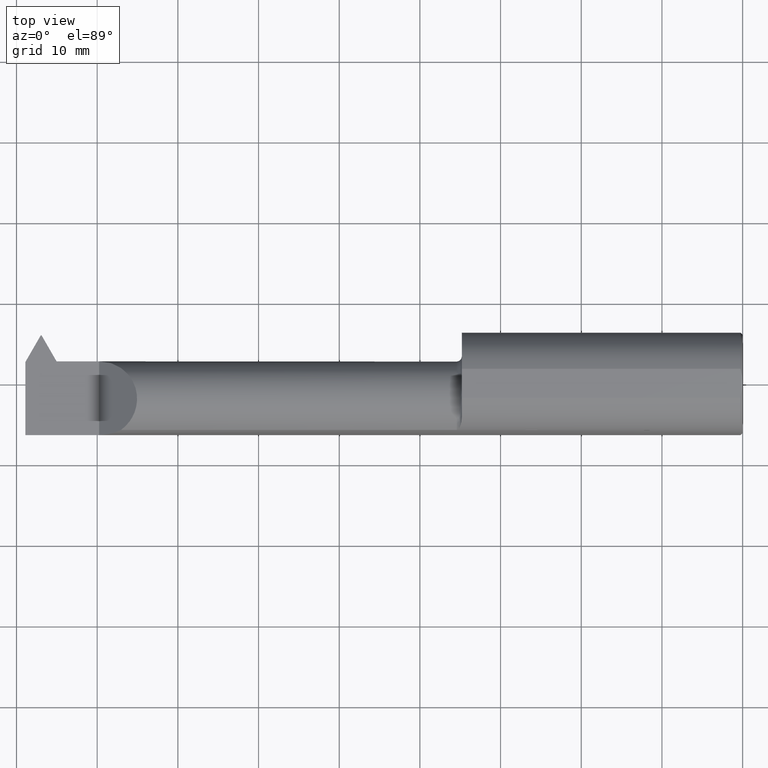
[diagram: clean part render]
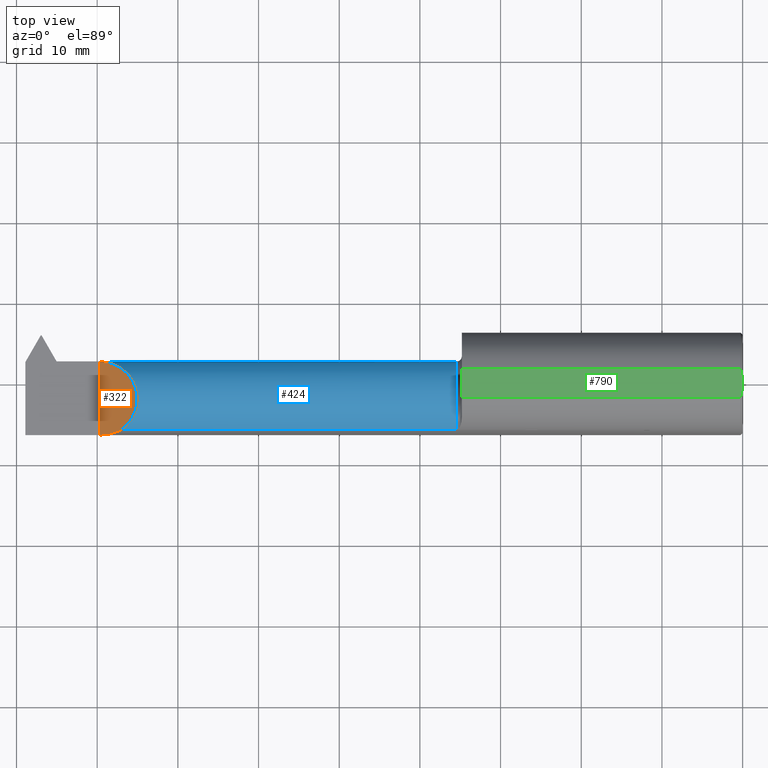
[diagram: same view with three faces highlighted in distinct colors, each labeled with its STEP entity id]
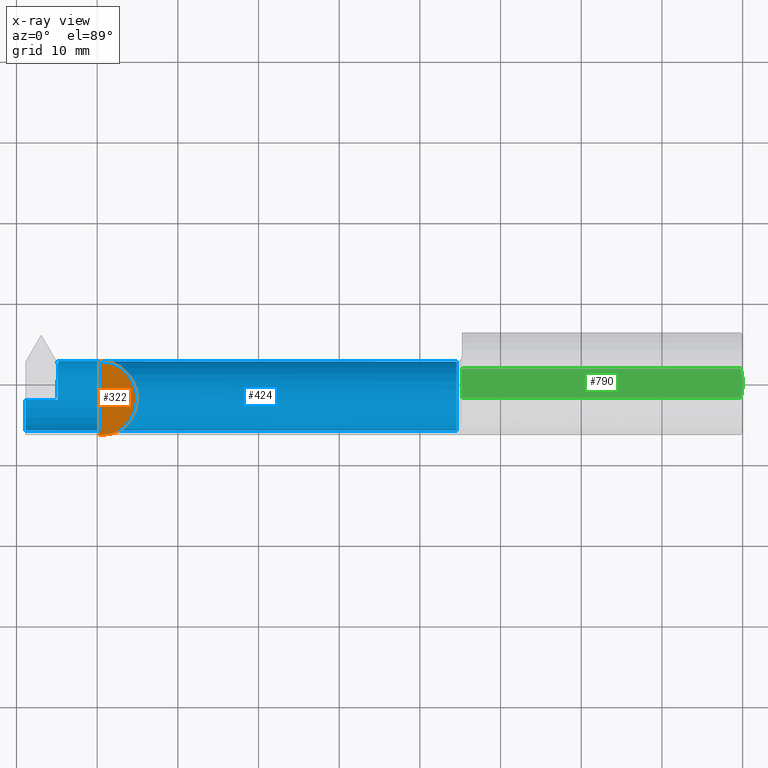
[diagram: x-ray of the same camera — body ghosted, the three highlighted faces saturated]
A machine part, top view with three faces highlighted in distinct colors.
The next image is the same camera in x-ray (body ghosted, the three faces saturated) — at least one of them is partly hidden behind the body in this view.
Their STEP definitions:

[orange] entity #322 — the highlighted planar face has unit normal (0.7071, 0, -0.7071).
#10 = PLANE ( 'NONE',  #853 ) ;
#84 = CARTESIAN_POINT ( 'NONE',  ( -3.033048970379629949, -0.2258019038076140572, 0.1069510296203688288 ) ) ;
#111 = CARTESIAN_POINT ( 'NONE',  ( -3.033048970379629949, -0.2258019038076140572, 0.1069510296203688288 ) ) ;
#143 = DIRECTION ( 'NONE',  ( -0.7071067811865522357, 0.000000000000000000, -0.7071067811865427988 ) ) ;
#163 = CARTESIAN_POINT ( 'NONE',  ( -3.139999999999999680, 0.1101499999999999840, 0.000000000000000000 ) ) ;
#186 = VERTEX_POINT ( 'NONE', #342 ) ;
#252 = CARTESIAN_POINT ( 'NONE',  ( -3.139999999999999680, -0.2500000000000000000, 0.000000000000000000 ) ) ;
#322 = ADVANCED_FACE ( 'NONE', ( #642 ), #10, .F. ) ;
#342 = CARTESIAN_POINT ( 'NONE',  ( -3.139999999999999680, -0.2498500000000000443, 0.000000000000000000 ) ) ;
#366 = CARTESIAN_POINT ( 'NONE',  ( -3.139999999999999680, 0.1101499999999999840, 0.000000000000000000 ) ) ;
#386 = ORIENTED_EDGE ( 'NONE', *, *, #509, .F. ) ;
#396 = EDGE_LOOP ( 'NONE', ( #435, #386, #616 ) ) ;
#399 = DIRECTION ( 'NONE',  ( -0.000000000000000000, 1.000000000000000000, -0.000000000000000000 ) ) ;
#405 = CARTESIAN_POINT ( 'NONE',  ( -3.139999999999999680, -0.2498500000000000443, 0.000000000000000000 ) ) ;
#435 = ORIENTED_EDGE ( 'NONE', *, *, #848, .F. ) ;
#448 = VERTEX_POINT ( 'NONE', #505 ) ;
#449 =( BOUNDED_CURVE ( )  B_SPLINE_CURVE ( 3, ( #366, #854, #508, #84 ),
 .UNSPECIFIED., .F., .T. ) 
 B_SPLINE_CURVE_WITH_KNOTS ( ( 4, 4 ),
 ( 1.570796326794896558, 4.095973986638924202 ),
 .UNSPECIFIED. ) 
 CURVE ( )  GEOMETRIC_REPRESENTATION_ITEM ( )  RATIONAL_B_SPLINE_CURVE ( ( 1.000000000000000000, 0.5355673909124378795, 0.5355673909124378795, 1.000000000000000000 ) ) 
 REPRESENTATION_ITEM ( '' )  );
#481 = VERTEX_POINT ( 'NONE', #163 ) ;
#487 = DIRECTION ( 'NONE',  ( 0.7071067811865427988, 0.000000000000000000, -0.7071067811865522357 ) ) ;
#505 = CARTESIAN_POINT ( 'NONE',  ( -3.033048970379629949, -0.2258019038076140572, 0.1069510296203688288 ) ) ;
#508 = CARTESIAN_POINT ( 'NONE',  ( -2.854000382304567651, -0.09894407450122377767, 0.2859996176954283653 ) ) ;
#509 = EDGE_CURVE ( 'NONE', #186, #481, #682, .T. ) ;
#615 = EDGE_CURVE ( 'NONE', #186, #448, #648, .T. ) ;
#616 = ORIENTED_EDGE ( 'NONE', *, *, #615, .T. ) ;
#626 = CARTESIAN_POINT ( 'NONE',  ( -3.066617523761939967, -0.2417016428557103302, 0.07338247623805854714 ) ) ;
#642 = FACE_OUTER_BOUND ( 'NONE', #396, .T. ) ;
#648 =( BOUNDED_CURVE ( )  B_SPLINE_CURVE ( 3, ( #405, #762, #626, #111 ),
 .UNSPECIFIED., .F., .T. ) 
 B_SPLINE_CURVE_WITH_KNOTS ( ( 4, 4 ),
 ( 4.712388980384689674, 5.154735109466821896 ),
 .UNSPECIFIED. ) 
 CURVE ( )  GEOMETRIC_REPRESENTATION_ITEM ( )  RATIONAL_B_SPLINE_CURVE ( ( 1.000000000000000000, 0.9837605203333756876, 0.9837605203333756876, 1.000000000000000000 ) ) 
 REPRESENTATION_ITEM ( '' )  );
#678 = VECTOR ( 'NONE', #399, 39.37007874015748143 ) ;
#682 = LINE ( 'NONE', #252, #678 ) ;
#762 = CARTESIAN_POINT ( 'NONE',  ( -3.102856366925425657, -0.2498500000000000443, 0.03714363307457357877 ) ) ;
#848 = EDGE_CURVE ( 'NONE', #481, #448, #449, .T. ) ;
#853 = AXIS2_PLACEMENT_3D ( 'NONE', #900, #487, #143 ) ;
#854 = CARTESIAN_POINT ( 'NONE',  ( -2.920565942142057114, 0.1101500000000000395, 0.2194340578579396794 ) ) ;
#900 = CARTESIAN_POINT ( 'NONE',  ( -3.139999999999999680, -0.2500000000000000000, 0.000000000000000000 ) ) ;

[blue] entity #424 — the highlighted cylindrical surface (partial cylindrical patch) has radius 4.699 mm, axis along (-1, -0, -0).
#3 = CIRCLE ( 'NONE', #289, 0.1849999999999999978 ) ;
#15 = CARTESIAN_POINT ( 'NONE',  ( -3.342159741839021425, 0.09859512884738201588, -0.06435671898966838222 ) ) ;
#24 = CARTESIAN_POINT ( 'NONE',  ( -3.500000000000000000, 0.01864742636900898129, -0.1596346806379234096 ) ) ;
#31 = DIRECTION ( 'NONE',  ( -1.000000000000000000, -7.384505942868129093E-18, -0.000000000000000000 ) ) ;
#39 = DIRECTION ( 'NONE',  ( -1.000000000000000000, -1.553500558300393113E-17, -0.000000000000000000 ) ) ;
#56 = LINE ( 'NONE', #699, #173 ) ;
#58 = VECTOR ( 'NONE', #126, 39.37007874015748143 ) ;
#61 = ORIENTED_EDGE ( 'NONE', *, *, #756, .F. ) ;
#79 = CARTESIAN_POINT ( 'NONE',  ( -3.500000000000000000, -0.2258019038076149176, -0.1069510296203672051 ) ) ;
#84 = CARTESIAN_POINT ( 'NONE',  ( -3.033048970379629949, -0.2258019038076140572, 0.1069510296203688288 ) ) ;
#85 = CARTESIAN_POINT ( 'NONE',  ( -3.342599165543727491, -0.07485000000000019416, -0.1849999999999999978 ) ) ;
#89 = CARTESIAN_POINT ( 'NONE',  ( -2.368799582771863754, -0.2258019038076140295, 0.1069510296203688010 ) ) ;
#109 = LINE ( 'NONE', #529, #117 ) ;
#117 = VECTOR ( 'NONE', #39, 39.37007874015748143 ) ;
#126 = DIRECTION ( 'NONE',  ( 1.000000000000000000, 7.384505942868129093E-18, 0.000000000000000000 ) ) ;
#157 = EDGE_CURVE ( 'NONE', #696, #302, #343, .T. ) ;
#163 = CARTESIAN_POINT ( 'NONE',  ( -3.139999999999999680, 0.1101499999999999840, 0.000000000000000000 ) ) ;
#173 = VECTOR ( 'NONE', #339, 39.37007874015748143 ) ;
#176 = EDGE_LOOP ( 'NONE', ( #438, #551, #675, #875, #606, #61, #575, #224, #379, #191, #797, #544, #550, #383 ) ) ;
#187 = CARTESIAN_POINT ( 'NONE',  ( -3.336295443407198746, 0.1038462778634677008, -0.04788152334401690746 ) ) ;
#191 = ORIENTED_EDGE ( 'NONE', *, *, #469, .F. ) ;
#193 = CARTESIAN_POINT ( 'NONE',  ( -3.500000000000000000, 0.1101500000000000257, 0.000000000000000000 ) ) ;
#214 = AXIS2_PLACEMENT_3D ( 'NONE', #600, #546, #835 ) ;
#221 = LINE ( 'NONE', #24, #244 ) ;
#224 = ORIENTED_EDGE ( 'NONE', *, *, #582, .T. ) ;
#230 = CARTESIAN_POINT ( 'NONE',  ( -3.500000000000000000, -0.07485000000000022191, 0.000000000000000000 ) ) ;
#244 = VECTOR ( 'NONE', #287, 39.37007874015748143 ) ;
#267 = VERTEX_POINT ( 'NONE', #79 ) ;
#275 = CARTESIAN_POINT ( 'NONE',  ( -3.342159741839021425, -0.07485000000000022191, 0.000000000000000000 ) ) ;
#276 = DIRECTION ( 'NONE',  ( -1.000000000000000000, -7.384505942868129093E-18, -0.000000000000000000 ) ) ;
#281 = LINE ( 'NONE', #777, #536 ) ;
#287 = DIRECTION ( 'NONE',  ( 1.000000000000000000, 7.384505942868129093E-18, 0.000000000000000000 ) ) ;
#289 = AXIS2_PLACEMENT_3D ( 'NONE', #816, #693, #687 ) ;
#297 = LINE ( 'NONE', #89, #825 ) ;
#299 = CIRCLE ( 'NONE', #579, 0.1850000000000000533 ) ;
#302 = VERTEX_POINT ( 'NONE', #489 ) ;
#316 = VERTEX_POINT ( 'NONE', #782 ) ;
#325 = CARTESIAN_POINT ( 'NONE',  ( -3.338354342563406796, 0.1080367062739653883, -0.03224263161056347554 ) ) ;
#326 = CARTESIAN_POINT ( 'NONE',  ( -1.395000000000000240, -0.07485000000000020803, 0.000000000000000000 ) ) ;
#339 = DIRECTION ( 'NONE',  ( -1.000000000000000000, -7.384505942868129093E-18, -0.000000000000000000 ) ) ;
#343 = CIRCLE ( 'NONE', #685, 0.1850000000000004974 ) ;
#358 = CARTESIAN_POINT ( 'NONE',  ( -3.342599165543727491, 0.01864742636900955375, -0.1596346806379227434 ) ) ;
#366 = CARTESIAN_POINT ( 'NONE',  ( -3.139999999999999680, 0.1101499999999999840, 0.000000000000000000 ) ) ;
#373 = LINE ( 'NONE', #668, #844 ) ;
#379 = ORIENTED_EDGE ( 'NONE', *, *, #848, .T. ) ;
#380 = CARTESIAN_POINT ( 'NONE',  ( -3.342159741839021425, 0.01864742636900932476, -0.1596346806379231598 ) ) ;
#383 = ORIENTED_EDGE ( 'NONE', *, *, #898, .F. ) ;
#406 = CARTESIAN_POINT ( 'NONE',  ( -3.342599165543727491, 0.1101499999999997759, 0.000000000000000000 ) ) ;
#408 = VERTEX_POINT ( 'NONE', #85 ) ;
#424 = ADVANCED_FACE ( 'NONE', ( #653 ), #870, .T. ) ;
#438 = ORIENTED_EDGE ( 'NONE', *, *, #556, .F. ) ;
#446 = AXIS2_PLACEMENT_3D ( 'NONE', #275, #552, #746 ) ;
#448 = VERTEX_POINT ( 'NONE', #505 ) ;
#449 =( BOUNDED_CURVE ( )  B_SPLINE_CURVE ( 3, ( #366, #854, #508, #84 ),
 .UNSPECIFIED., .F., .T. ) 
 B_SPLINE_CURVE_WITH_KNOTS ( ( 4, 4 ),
 ( 1.570796326794896558, 4.095973986638924202 ),
 .UNSPECIFIED. ) 
 CURVE ( )  GEOMETRIC_REPRESENTATION_ITEM ( )  RATIONAL_B_SPLINE_CURVE ( ( 1.000000000000000000, 0.5355673909124378795, 0.5355673909124378795, 1.000000000000000000 ) ) 
 REPRESENTATION_ITEM ( '' )  );
#469 = EDGE_CURVE ( 'NONE', #696, #448, #297, .T. ) ;
#478 = LINE ( 'NONE', #193, #58 ) ;
#481 = VERTEX_POINT ( 'NONE', #163 ) ;
#482 = DIRECTION ( 'NONE',  ( 0.000000000000000000, -1.000000000000000000, 0.000000000000000000 ) ) ;
#485 = EDGE_CURVE ( 'NONE', #267, #302, #373, .T. ) ;
#486 = DIRECTION ( 'NONE',  ( 1.000000000000000000, 1.553500558300393113E-17, -0.000000000000000000 ) ) ;
#489 = CARTESIAN_POINT ( 'NONE',  ( -1.395000000000000240, -0.2258019038076141960, -0.1069510296203689120 ) ) ;
#490 = AXIS2_PLACEMENT_3D ( 'NONE', #230, #521, #803 ) ;
#505 = CARTESIAN_POINT ( 'NONE',  ( -3.033048970379629949, -0.2258019038076140572, 0.1069510296203688288 ) ) ;
#508 = CARTESIAN_POINT ( 'NONE',  ( -2.854000382304567651, -0.09894407450122377767, 0.2859996176954283653 ) ) ;
#521 = DIRECTION ( 'NONE',  ( -1.000000000000000000, -7.384505942868129093E-18, -0.000000000000000000 ) ) ;
#522 = EDGE_CURVE ( 'NONE', #623, #772, #697, .T. ) ;
#529 = CARTESIAN_POINT ( 'NONE',  ( -3.342599165543727491, -0.07485000000000019416, -0.1850000000000000533 ) ) ;
#531 = CARTESIAN_POINT ( 'NONE',  ( -3.342599165543727491, 0.1101499999999997759, 0.000000000000000000 ) ) ;
#536 = VECTOR ( 'NONE', #276, 39.37007874015748143 ) ;
#544 = ORIENTED_EDGE ( 'NONE', *, *, #485, .F. ) ;
#545 = EDGE_CURVE ( 'NONE', #808, #316, #779, .T. ) ;
#546 = DIRECTION ( 'NONE',  ( -1.000000000000000000, -7.384505942868129093E-18, -0.000000000000000000 ) ) ;
#550 = ORIENTED_EDGE ( 'NONE', *, *, #715, .T. ) ;
#551 = ORIENTED_EDGE ( 'NONE', *, *, #781, .T. ) ;
#552 = DIRECTION ( 'NONE',  ( 1.000000000000000000, -0.000000000000000000, 0.000000000000000000 ) ) ;
#555 = CARTESIAN_POINT ( 'NONE',  ( -1.395000000000000240, -0.2258019038076141960, 0.1069510296203689120 ) ) ;
#556 = EDGE_CURVE ( 'NONE', #806, #408, #3, .T. ) ;
#563 = EDGE_CURVE ( 'NONE', #772, #316, #56, .T. ) ;
#575 = ORIENTED_EDGE ( 'NONE', *, *, #634, .F. ) ;
#579 = AXIS2_PLACEMENT_3D ( 'NONE', #700, #486, #482 ) ;
#582 = EDGE_CURVE ( 'NONE', #704, #481, #478, .T. ) ;
#583 = CARTESIAN_POINT ( 'NONE',  ( -3.342599165543727491, 0.1038462778634778455, -0.04788152334396475474 ) ) ;
#600 = CARTESIAN_POINT ( 'NONE',  ( -3.342599165543727491, -0.07485000000000022191, 0.000000000000000000 ) ) ;
#606 = ORIENTED_EDGE ( 'NONE', *, *, #545, .F. ) ;
#620 = CARTESIAN_POINT ( 'NONE',  ( -3.500000000000000000, -0.07485000000000019416, -0.1850000000000000533 ) ) ;
#623 = VERTEX_POINT ( 'NONE', #380 ) ;
#634 = EDGE_CURVE ( 'NONE', #704, #804, #847, .T. ) ;
#652 = CARTESIAN_POINT ( 'NONE',  ( -3.336295443407198746, 0.1038462778634677008, -0.04788152334401690746 ) ) ;
#653 = FACE_OUTER_BOUND ( 'NONE', #176, .T. ) ;
#668 = CARTESIAN_POINT ( 'NONE',  ( -2.368799582771863754, -0.2258019038076140295, -0.1069510296203688010 ) ) ;
#675 = ORIENTED_EDGE ( 'NONE', *, *, #522, .T. ) ;
#685 = AXIS2_PLACEMENT_3D ( 'NONE', #326, #750, #818 ) ;
#687 = DIRECTION ( 'NONE',  ( 0.000000000000000000, -1.000000000000000000, 0.000000000000000000 ) ) ;
#693 = DIRECTION ( 'NONE',  ( -1.000000000000000000, -7.384505942868129093E-18, -0.000000000000000000 ) ) ;
#696 = VERTEX_POINT ( 'NONE', #555 ) ;
#697 = CIRCLE ( 'NONE', #446, 0.1850000000000002476 ) ;
#699 = CARTESIAN_POINT ( 'NONE',  ( -3.500000000000000000, 0.09859512884738169669, -0.06435671898966861815 ) ) ;
#700 = CARTESIAN_POINT ( 'NONE',  ( -3.500000000000000000, -0.07485000000000022191, 0.000000000000000000 ) ) ;
#704 = VERTEX_POINT ( 'NONE', #406 ) ;
#715 = EDGE_CURVE ( 'NONE', #267, #722, #299, .T. ) ;
#722 = VERTEX_POINT ( 'NONE', #620 ) ;
#746 = DIRECTION ( 'NONE',  ( 0.000000000000000000, 8.767755385071102547E-16, 1.000000000000000000 ) ) ;
#750 = DIRECTION ( 'NONE',  ( -1.000000000000000000, -7.384505942868129093E-18, -0.000000000000000000 ) ) ;
#756 = EDGE_CURVE ( 'NONE', #804, #808, #281, .T. ) ;
#772 = VERTEX_POINT ( 'NONE', #15 ) ;
#777 = CARTESIAN_POINT ( 'NONE',  ( -3.500000000000007550, 0.1038462778634642730, -0.04788152334401638704 ) ) ;
#779 = CIRCLE ( 'NONE', #214, 0.1849999999999999978 ) ;
#781 = EDGE_CURVE ( 'NONE', #806, #623, #221, .T. ) ;
#782 = CARTESIAN_POINT ( 'NONE',  ( -3.342599165543727491, 0.09859512884738119709, -0.06435671898966928428 ) ) ;
#797 = ORIENTED_EDGE ( 'NONE', *, *, #157, .T. ) ;
#803 = DIRECTION ( 'NONE',  ( 0.000000000000000000, -1.000000000000000000, 0.000000000000000000 ) ) ;
#804 = VERTEX_POINT ( 'NONE', #652 ) ;
#806 = VERTEX_POINT ( 'NONE', #358 ) ;
#808 = VERTEX_POINT ( 'NONE', #583 ) ;
#816 = CARTESIAN_POINT ( 'NONE',  ( -3.342599165543727491, -0.07485000000000022191, 0.000000000000000000 ) ) ;
#818 = DIRECTION ( 'NONE',  ( 0.000000000000000000, -1.000000000000000000, 0.000000000000000000 ) ) ;
#825 = VECTOR ( 'NONE', #31, 39.37007874015748143 ) ;
#835 = DIRECTION ( 'NONE',  ( 0.000000000000000000, -1.000000000000000000, 0.000000000000000000 ) ) ;
#844 = VECTOR ( 'NONE', #874, 39.37007874015748143 ) ;
#847 =( BOUNDED_CURVE ( )  B_SPLINE_CURVE ( 3, ( #531, #905, #325, #187 ),
 .UNSPECIFIED., .F., .T. ) 
 B_SPLINE_CURVE_WITH_KNOTS ( ( 4, 4 ),
 ( 1.570796326794896780, 1.832595714594323910 ),
 .UNSPECIFIED. ) 
 CURVE ( )  GEOMETRIC_REPRESENTATION_ITEM ( )  RATIONAL_B_SPLINE_CURVE ( ( 1.000000000000000000, 0.9942965742491948200, 0.9942965742491948200, 1.000000000000000000 ) ) 
 REPRESENTATION_ITEM ( '' )  );
#848 = EDGE_CURVE ( 'NONE', #481, #448, #449, .T. ) ;
#854 = CARTESIAN_POINT ( 'NONE',  ( -2.920565942142057114, 0.1101500000000000395, 0.2194340578579396794 ) ) ;
#870 = CYLINDRICAL_SURFACE ( 'NONE', #490, 0.1850000000000002476 ) ;
#874 = DIRECTION ( 'NONE',  ( 1.000000000000000000, 7.384505942868129093E-18, 0.000000000000000000 ) ) ;
#875 = ORIENTED_EDGE ( 'NONE', *, *, #563, .T. ) ;
#898 = EDGE_CURVE ( 'NONE', #408, #722, #109, .T. ) ;
#905 = CARTESIAN_POINT ( 'NONE',  ( -3.340467636289438325, 0.1101500000000000257, -0.01619057209965683863 ) ) ;

[green] entity #790 — the highlighted planar face has unit normal (-0, 0, -1).
#17 = FACE_OUTER_BOUND ( 'NONE', #599, .T. ) ;
#65 = VECTOR ( 'NONE', #683, 39.37007874015748143 ) ;
#83 = DIRECTION ( 'NONE',  ( -1.000000000000000000, -1.224646799147351728E-16, 0.000000000000000000 ) ) ;
#97 = VERTEX_POINT ( 'NONE', #763 ) ;
#101 = ORIENTED_EDGE ( 'NONE', *, *, #172, .F. ) ;
#103 = EDGE_CURVE ( 'NONE', #895, #466, #694, .T. ) ;
#121 = AXIS2_PLACEMENT_3D ( 'NONE', #154, #431, #861 ) ;
#128 = LINE ( 'NONE', #702, #65 ) ;
#132 = EDGE_CURVE ( 'NONE', #892, #97, #264, .T. ) ;
#133 = VECTOR ( 'NONE', #83, 39.37007874015748143 ) ;
#135 = CARTESIAN_POINT ( 'NONE',  ( 5.327303674168286333E-16, -0.01184236993541495399, 0.2398500000000000631 ) ) ;
#154 = CARTESIAN_POINT ( 'NONE',  ( -3.500000000000000000, 0.2748500000000003718, 0.2398500000000001187 ) ) ;
#172 = EDGE_CURVE ( 'NONE', #895, #891, #128, .T. ) ;
#179 = CARTESIAN_POINT ( 'NONE',  ( -0.01000000000000016674, -0.06997856814768303735, 0.2398500000000000631 ) ) ;
#183 = CARTESIAN_POINT ( 'NONE',  ( -0.006819279375478341267, 0.05862219048703214835, 0.2398500000000000631 ) ) ;
#203 = ORIENTED_EDGE ( 'NONE', *, *, #670, .T. ) ;
#212 = CARTESIAN_POINT ( 'NONE',  ( -0.004274624415784134858, -0.04692581729597348345, 0.2398500000000001464 ) ) ;
#213 = CARTESIAN_POINT ( 'NONE',  ( -3.500000000000000000, 0.06997856814768327327, 0.2398500000000000631 ) ) ;
#239 = ORIENTED_EDGE ( 'NONE', *, *, #103, .T. ) ;
#258 = EDGE_CURVE ( 'NONE', #97, #891, #425, .T. ) ;
#264 = B_SPLINE_CURVE_WITH_KNOTS ( 'NONE', 3,
 ( #912, #769, #894, #629, #183, #462 ),
 .UNSPECIFIED., .F., .F.,
 ( 4, 2, 4 ),
 ( 0.004673882328079624962, 0.005569206097324359665, 0.006464529866569094368 ),
 .UNSPECIFIED. ) ;
#280 = CARTESIAN_POINT ( 'NONE',  ( -0.006805225572347237128, -0.05857201308550635810, 0.2398500000000000631 ) ) ;
#284 = CARTESIAN_POINT ( 'NONE',  ( -0.0008810604711148443176, -0.02359329477404694536, 0.2398500000000000631 ) ) ;
#292 = B_SPLINE_CURVE_WITH_KNOTS ( 'NONE', 3,
 ( #559, #280, #212, #284, #135, #780 ),
 .UNSPECIFIED., .F., .F.,
 ( 4, 2, 4 ),
 ( 0.002885180213238084518, 0.003779531270658854740, 0.004673882328079624962 ),
 .UNSPECIFIED. ) ;
#318 = CARTESIAN_POINT ( 'NONE',  ( -5.793904011180277080E-33, 3.119473511487017836E-16, 0.2398500000000000631 ) ) ;
#323 = CARTESIAN_POINT ( 'NONE',  ( -3.500000000000000000, -0.06997856814768346756, 0.2398500000000000631 ) ) ;
#360 = ORIENTED_EDGE ( 'NONE', *, *, #132, .T. ) ;
#376 = ORIENTED_EDGE ( 'NONE', *, *, #258, .T. ) ;
#407 = DIRECTION ( 'NONE',  ( 1.000000000000000000, 1.224646799147351728E-16, -0.000000000000000000 ) ) ;
#425 = LINE ( 'NONE', #213, #133 ) ;
#431 = DIRECTION ( 'NONE',  ( -1.930110689171018178E-33, 1.242426775361223693E-16, -1.000000000000000000 ) ) ;
#453 = VECTOR ( 'NONE', #407, 39.37007874015748143 ) ;
#462 = CARTESIAN_POINT ( 'NONE',  ( -0.01000000000000016674, 0.06997856814768370348, 0.2398500000000000631 ) ) ;
#466 = VERTEX_POINT ( 'NONE', #179 ) ;
#535 = CARTESIAN_POINT ( 'NONE',  ( -1.370000000000000329, 0.06997856814768370348, 0.2398500000000000631 ) ) ;
#559 = CARTESIAN_POINT ( 'NONE',  ( -0.01000000000000016674, -0.06997856814768303735, 0.2398500000000000631 ) ) ;
#599 = EDGE_LOOP ( 'NONE', ( #101, #239, #203, #360, #376 ) ) ;
#629 = CARTESIAN_POINT ( 'NONE',  ( -0.004312611582162080744, 0.04712320684214382771, 0.2398500000000001464 ) ) ;
#670 = EDGE_CURVE ( 'NONE', #466, #892, #292, .T. ) ;
#683 = DIRECTION ( 'NONE',  ( -7.384505942868129093E-18, 1.000000000000000000, 1.242426775361223693E-16 ) ) ;
#694 = LINE ( 'NONE', #323, #453 ) ;
#702 = CARTESIAN_POINT ( 'NONE',  ( -1.370000000000000329, 0.2748500000000003718, 0.2398500000000001187 ) ) ;
#763 = CARTESIAN_POINT ( 'NONE',  ( -0.01000000000000016674, 0.06997856814768370348, 0.2398500000000000631 ) ) ;
#769 = CARTESIAN_POINT ( 'NONE',  ( 5.392554112493520969E-16, 0.01185524990370569014, 0.2398500000000001464 ) ) ;
#780 = CARTESIAN_POINT ( 'NONE',  ( -5.793904011180277080E-33, 3.119473511487017836E-16, 0.2398500000000000631 ) ) ;
#790 = ADVANCED_FACE ( 'NONE', ( #17 ), #801, .F. ) ;
#801 = PLANE ( 'NONE',  #121 ) ;
#861 = DIRECTION ( 'NONE',  ( 0.000000000000000000, 1.000000000000000000, 1.242426775361223693E-16 ) ) ;
#877 = CARTESIAN_POINT ( 'NONE',  ( -1.370000000000000329, -0.06997856814768319000, 0.2398500000000000631 ) ) ;
#891 = VERTEX_POINT ( 'NONE', #535 ) ;
#892 = VERTEX_POINT ( 'NONE', #318 ) ;
#894 = CARTESIAN_POINT ( 'NONE',  ( -0.0009000473449532335772, 0.02378657236894419352, 0.2398500000000001187 ) ) ;
#895 = VERTEX_POINT ( 'NONE', #877 ) ;
#912 = CARTESIAN_POINT ( 'NONE',  ( -5.793904011180277080E-33, 3.119473511487017836E-16, 0.2398500000000000631 ) ) ;